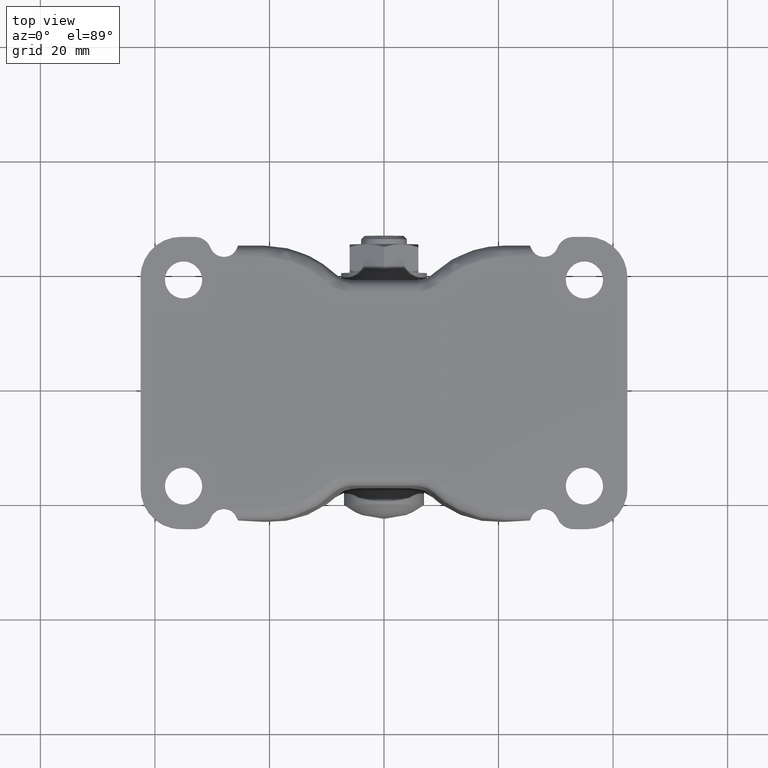
[diagram: clean part render]
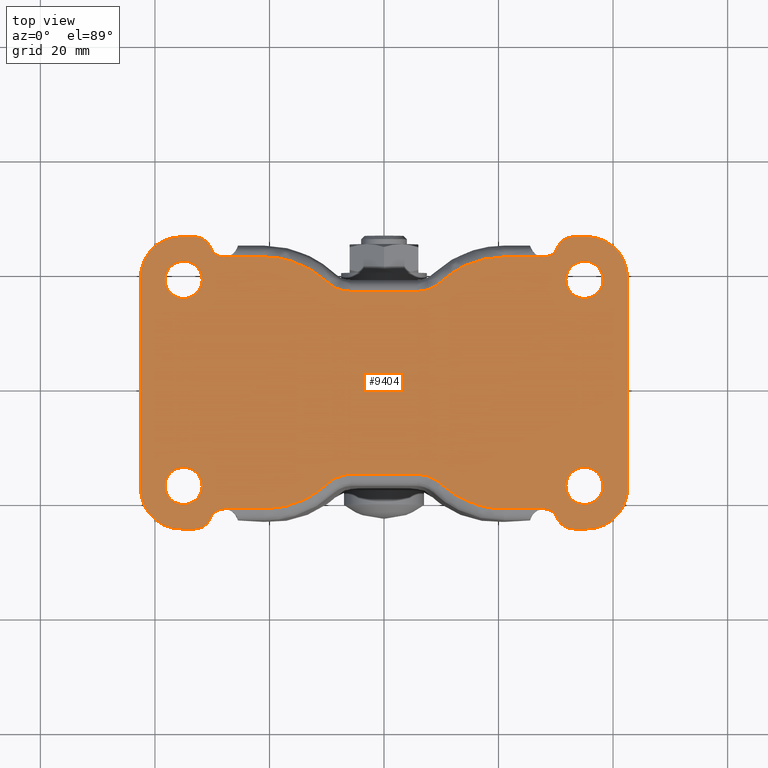
[diagram: same view with one face highlighted and labeled with its STEP entity id]
A machine part, top view. The second image highlights one B-rep face of the part: STEP entity #9404.
In plain terms, the highlighted face is a freeform B-spline surface patch.
Its self-contained STEP definition (entity closure, byte-faithful):
#4621=CARTESIAN_POINT('',(-35.198407753873020,14.756061905152460,48.500000000000000));
#4622=VERTEX_POINT('',#4621);
#4623=CARTESIAN_POINT('',(-31.750000000000000,18.0,48.500000000000000));
#4624=VERTEX_POINT('',#4623);
#4625=CARTESIAN_POINT('',(-35.198407753873028,14.756061905152468,48.500000000000014));
#4626=CARTESIAN_POINT('',(-35.099296480913317,14.750000000000005,48.500000000000007));
#4627=CARTESIAN_POINT('',(-35.0,14.750000000000000,48.500000000000000));
#4628=CARTESIAN_POINT('',(-31.749999999999996,14.749999999999993,48.500000000000014));
#4629=CARTESIAN_POINT('',(-31.750000000000000,18.0,48.500000000000000));
#4637=(BOUNDED_CURVE()B_SPLINE_CURVE(2,(#4625,#4626,#4627,#4628,#4629),.UNSPECIFIED.,.F.,.U.)B_SPLINE_CURVE_WITH_KNOTS((3,2,3),(0.239332962221504,0.250000000000000,0.500000000000000),.UNSPECIFIED.)CURVE()GEOMETRIC_REPRESENTATION_ITEM()RATIONAL_B_SPLINE_CURVE((0.976072041629343,0.987502787879406,1.0,0.707106781186547,1.0))REPRESENTATION_ITEM(''));
#4638=EDGE_CURVE('',#4622,#4624,#4637,.T.);
#4640=CARTESIAN_POINT('',(-34.801592246126987,21.243938094847540,48.499999999999993));
#4641=VERTEX_POINT('',#4640);
#4642=CARTESIAN_POINT('',(-31.750000000000000,18.0,48.500000000000000));
#4643=CARTESIAN_POINT('',(-31.749999999999993,21.057294717080239,48.500000000000021));
#4644=CARTESIAN_POINT('',(-34.801592246126987,21.243938094847532,48.499999999999986));
#4652=(BOUNDED_CURVE()B_SPLINE_CURVE(2,(#4642,#4643,#4644),.UNSPECIFIED.,.F.,.U.)B_SPLINE_CURVE_WITH_KNOTS((3,3),(0.500000000000000,0.739332962221505),.UNSPECIFIED.)CURVE()GEOMETRIC_REPRESENTATION_ITEM()RATIONAL_B_SPLINE_CURVE((1.0,0.719603993307140,0.976072041629344))REPRESENTATION_ITEM(''));
#4653=EDGE_CURVE('',#4624,#4641,#4652,.T.);
#4720=CARTESIAN_POINT('',(-38.250000000000007,18.0,48.500000000000000));
#4721=VERTEX_POINT('',#4720);
#4722=CARTESIAN_POINT('',(-38.250000000000007,18.0,48.500000000000000));
#4723=CARTESIAN_POINT('',(-38.250000000000014,14.942705282919762,48.500000000000014));
#4724=CARTESIAN_POINT('',(-35.198407753873020,14.756061905152464,48.500000000000000));
#4732=(BOUNDED_CURVE()B_SPLINE_CURVE(2,(#4722,#4723,#4724),.UNSPECIFIED.,.F.,.U.)B_SPLINE_CURVE_WITH_KNOTS((3,3),(0.0,0.239332962221504),.UNSPECIFIED.)CURVE()GEOMETRIC_REPRESENTATION_ITEM()RATIONAL_B_SPLINE_CURVE((1.0,0.719603993307141,0.976072041629343))REPRESENTATION_ITEM(''));
#4733=EDGE_CURVE('',#4721,#4622,#4732,.T.);
#4767=CARTESIAN_POINT('',(-34.801592246126987,21.243938094847532,48.499999999999986));
#4768=CARTESIAN_POINT('',(-34.900703519086690,21.249999999999996,48.499999999999993));
#4769=CARTESIAN_POINT('',(-35.0,21.250000000000000,48.500000000000000));
#4770=CARTESIAN_POINT('',(-38.250000000000014,21.249999999999996,48.500000000000014));
#4771=CARTESIAN_POINT('',(-38.250000000000007,18.0,48.500000000000000));
#4779=(BOUNDED_CURVE()B_SPLINE_CURVE(2,(#4767,#4768,#4769,#4770,#4771),.UNSPECIFIED.,.F.,.U.)B_SPLINE_CURVE_WITH_KNOTS((3,2,3),(0.739332962221505,0.750000000000000,1.0),.UNSPECIFIED.)CURVE()GEOMETRIC_REPRESENTATION_ITEM()RATIONAL_B_SPLINE_CURVE((0.976072041629344,0.987502787879407,1.0,0.707106781186547,1.0))REPRESENTATION_ITEM(''));
#4780=EDGE_CURVE('',#4641,#4721,#4779,.T.);
#4803=CARTESIAN_POINT('',(-35.198407753873013,-21.243938094847529,48.500000000000000));
#4804=VERTEX_POINT('',#4803);
#4805=CARTESIAN_POINT('',(-31.750000000000000,-18.0,48.500000000000000));
#4806=VERTEX_POINT('',#4805);
#4807=CARTESIAN_POINT('',(-35.198407753873020,-21.243938094847540,48.499999999999993));
#4808=CARTESIAN_POINT('',(-35.099296480913317,-21.250000000000000,48.500000000000000));
#4809=CARTESIAN_POINT('',(-35.0,-21.250000000000000,48.500000000000000));
#4810=CARTESIAN_POINT('',(-31.749999999999996,-21.249999999999996,48.500000000000014));
#4811=CARTESIAN_POINT('',(-31.750000000000000,-18.0,48.500000000000000));
#4819=(BOUNDED_CURVE()B_SPLINE_CURVE(2,(#4807,#4808,#4809,#4810,#4811),.UNSPECIFIED.,.F.,.U.)B_SPLINE_CURVE_WITH_KNOTS((3,2,3),(0.239332962221504,0.250000000000000,0.500000000000000),.UNSPECIFIED.)CURVE()GEOMETRIC_REPRESENTATION_ITEM()RATIONAL_B_SPLINE_CURVE((0.976072041629344,0.987502787879407,1.0,0.707106781186547,1.0))REPRESENTATION_ITEM(''));
#4820=EDGE_CURVE('',#4804,#4806,#4819,.T.);
#4822=CARTESIAN_POINT('',(-34.801592246126987,-14.756061905152460,48.500000000000000));
#4823=VERTEX_POINT('',#4822);
#4824=CARTESIAN_POINT('',(-31.750000000000000,-18.0,48.500000000000000));
#4825=CARTESIAN_POINT('',(-31.749999999999993,-14.942705282919759,48.500000000000021));
#4826=CARTESIAN_POINT('',(-34.801592246126987,-14.756061905152459,48.499999999999986));
#4834=(BOUNDED_CURVE()B_SPLINE_CURVE(2,(#4824,#4825,#4826),.UNSPECIFIED.,.F.,.U.)B_SPLINE_CURVE_WITH_KNOTS((3,3),(0.500000000000000,0.739332962221505),.UNSPECIFIED.)CURVE()GEOMETRIC_REPRESENTATION_ITEM()RATIONAL_B_SPLINE_CURVE((1.0,0.719603993307140,0.976072041629344))REPRESENTATION_ITEM(''));
#4835=EDGE_CURVE('',#4806,#4823,#4834,.T.);
#4902=CARTESIAN_POINT('',(-38.250000000000007,-18.0,48.500000000000000));
#4903=VERTEX_POINT('',#4902);
#4904=CARTESIAN_POINT('',(-38.250000000000007,-18.0,48.500000000000000));
#4905=CARTESIAN_POINT('',(-38.250000000000000,-21.057294717080236,48.500000000000000));
#4906=CARTESIAN_POINT('',(-35.198407753873013,-21.243938094847536,48.500000000000007));
#4914=(BOUNDED_CURVE()B_SPLINE_CURVE(2,(#4904,#4905,#4906),.UNSPECIFIED.,.F.,.U.)B_SPLINE_CURVE_WITH_KNOTS((3,3),(0.0,0.239332962221505),.UNSPECIFIED.)CURVE()GEOMETRIC_REPRESENTATION_ITEM()RATIONAL_B_SPLINE_CURVE((1.0,0.719603993307140,0.976072041629344))REPRESENTATION_ITEM(''));
#4915=EDGE_CURVE('',#4903,#4804,#4914,.T.);
#4949=CARTESIAN_POINT('',(-34.801592246126987,-14.756061905152459,48.499999999999986));
#4950=CARTESIAN_POINT('',(-34.900703519086690,-14.750000000000005,48.499999999999993));
#4951=CARTESIAN_POINT('',(-35.0,-14.750000000000000,48.500000000000000));
#4952=CARTESIAN_POINT('',(-38.250000000000014,-14.749999999999993,48.500000000000014));
#4953=CARTESIAN_POINT('',(-38.250000000000007,-18.0,48.500000000000000));
#4961=(BOUNDED_CURVE()B_SPLINE_CURVE(2,(#4949,#4950,#4951,#4952,#4953),.UNSPECIFIED.,.F.,.U.)B_SPLINE_CURVE_WITH_KNOTS((3,2,3),(0.739332962221505,0.750000000000000,1.0),.UNSPECIFIED.)CURVE()GEOMETRIC_REPRESENTATION_ITEM()RATIONAL_B_SPLINE_CURVE((0.976072041629344,0.987502787879407,1.0,0.707106781186547,1.0))REPRESENTATION_ITEM(''));
#4962=EDGE_CURVE('',#4823,#4903,#4961,.T.);
#4985=CARTESIAN_POINT('',(34.801592246126980,-21.243938094847529,48.500000000000000));
#4986=VERTEX_POINT('',#4985);
#4987=CARTESIAN_POINT('',(38.250000000000007,-18.0,48.500000000000000));
#4988=VERTEX_POINT('',#4987);
#4989=CARTESIAN_POINT('',(34.801592246126987,-21.243938094847536,48.500000000000007));
#4990=CARTESIAN_POINT('',(34.900703519086683,-21.249999999999996,48.500000000000000));
#4991=CARTESIAN_POINT('',(35.0,-21.250000000000000,48.500000000000000));
#4992=CARTESIAN_POINT('',(38.250000000000014,-21.249999999999996,48.500000000000014));
#4993=CARTESIAN_POINT('',(38.250000000000007,-18.0,48.500000000000000));
#5001=(BOUNDED_CURVE()B_SPLINE_CURVE(2,(#4989,#4990,#4991,#4992,#4993),.UNSPECIFIED.,.F.,.U.)B_SPLINE_CURVE_WITH_KNOTS((3,2,3),(0.239332962221504,0.250000000000000,0.500000000000000),.UNSPECIFIED.)CURVE()GEOMETRIC_REPRESENTATION_ITEM()RATIONAL_B_SPLINE_CURVE((0.976072041629343,0.987502787879406,1.0,0.707106781186547,1.0))REPRESENTATION_ITEM(''));
#5002=EDGE_CURVE('',#4986,#4988,#5001,.T.);
#5004=CARTESIAN_POINT('',(35.198407753873013,-14.756061905152460,48.500000000000000));
#5005=VERTEX_POINT('',#5004);
#5006=CARTESIAN_POINT('',(38.250000000000007,-18.0,48.500000000000000));
#5007=CARTESIAN_POINT('',(38.250000000000007,-14.942705282919759,48.500000000000021));
#5008=CARTESIAN_POINT('',(35.198407753873006,-14.756061905152459,48.499999999999986));
#5016=(BOUNDED_CURVE()B_SPLINE_CURVE(2,(#5006,#5007,#5008),.UNSPECIFIED.,.F.,.U.)B_SPLINE_CURVE_WITH_KNOTS((3,3),(0.500000000000000,0.739332962221505),.UNSPECIFIED.)CURVE()GEOMETRIC_REPRESENTATION_ITEM()RATIONAL_B_SPLINE_CURVE((1.0,0.719603993307140,0.976072041629344))REPRESENTATION_ITEM(''));
#5017=EDGE_CURVE('',#4988,#5005,#5016,.T.);
#5084=CARTESIAN_POINT('',(31.750000000000000,-18.0,48.500000000000000));
#5085=VERTEX_POINT('',#5084);
#5086=CARTESIAN_POINT('',(31.750000000000000,-18.0,48.500000000000000));
#5087=CARTESIAN_POINT('',(31.750000000000004,-21.057294717080236,48.500000000000007));
#5088=CARTESIAN_POINT('',(34.801592246126972,-21.243938094847536,48.500000000000014));
#5096=(BOUNDED_CURVE()B_SPLINE_CURVE(2,(#5086,#5087,#5088),.UNSPECIFIED.,.F.,.U.)B_SPLINE_CURVE_WITH_KNOTS((3,3),(0.0,0.239332962221504),.UNSPECIFIED.)CURVE()GEOMETRIC_REPRESENTATION_ITEM()RATIONAL_B_SPLINE_CURVE((1.0,0.719603993307141,0.976072041629343))REPRESENTATION_ITEM(''));
#5097=EDGE_CURVE('',#5085,#4986,#5096,.T.);
#5131=CARTESIAN_POINT('',(35.198407753873006,-14.756061905152459,48.499999999999986));
#5132=CARTESIAN_POINT('',(35.099296480913310,-14.750000000000005,48.499999999999993));
#5133=CARTESIAN_POINT('',(35.0,-14.750000000000000,48.500000000000000));
#5134=CARTESIAN_POINT('',(31.749999999999996,-14.749999999999993,48.500000000000014));
#5135=CARTESIAN_POINT('',(31.750000000000000,-18.0,48.500000000000000));
#5143=(BOUNDED_CURVE()B_SPLINE_CURVE(2,(#5131,#5132,#5133,#5134,#5135),.UNSPECIFIED.,.F.,.U.)B_SPLINE_CURVE_WITH_KNOTS((3,2,3),(0.739332962221505,0.750000000000000,1.0),.UNSPECIFIED.)CURVE()GEOMETRIC_REPRESENTATION_ITEM()RATIONAL_B_SPLINE_CURVE((0.976072041629344,0.987502787879407,1.0,0.707106781186547,1.0))REPRESENTATION_ITEM(''));
#5144=EDGE_CURVE('',#5005,#5085,#5143,.T.);
#5167=CARTESIAN_POINT('',(34.801592246126972,14.756061905152460,48.500000000000000));
#5168=VERTEX_POINT('',#5167);
#5169=CARTESIAN_POINT('',(38.250000000000007,18.0,48.500000000000000));
#5170=VERTEX_POINT('',#5169);
#5171=CARTESIAN_POINT('',(34.801592246126972,14.756061905152460,48.500000000000007));
#5172=CARTESIAN_POINT('',(34.900703519086676,14.750000000000002,48.500000000000000));
#5173=CARTESIAN_POINT('',(35.0,14.750000000000000,48.500000000000000));
#5174=CARTESIAN_POINT('',(38.250000000000014,14.749999999999993,48.500000000000014));
#5175=CARTESIAN_POINT('',(38.250000000000007,18.0,48.500000000000000));
#5183=(BOUNDED_CURVE()B_SPLINE_CURVE(2,(#5171,#5172,#5173,#5174,#5175),.UNSPECIFIED.,.F.,.U.)B_SPLINE_CURVE_WITH_KNOTS((3,2,3),(0.239332962221504,0.250000000000000,0.500000000000000),.UNSPECIFIED.)CURVE()GEOMETRIC_REPRESENTATION_ITEM()RATIONAL_B_SPLINE_CURVE((0.976072041629342,0.987502787879406,1.0,0.707106781186547,1.0))REPRESENTATION_ITEM(''));
#5184=EDGE_CURVE('',#5168,#5170,#5183,.T.);
#5186=CARTESIAN_POINT('',(35.198407753873013,21.243938094847540,48.500000000000000));
#5187=VERTEX_POINT('',#5186);
#5188=CARTESIAN_POINT('',(38.250000000000007,18.0,48.500000000000000));
#5189=CARTESIAN_POINT('',(38.250000000000007,21.057294717080239,48.500000000000021));
#5190=CARTESIAN_POINT('',(35.198407753873006,21.243938094847532,48.499999999999986));
#5198=(BOUNDED_CURVE()B_SPLINE_CURVE(2,(#5188,#5189,#5190),.UNSPECIFIED.,.F.,.U.)B_SPLINE_CURVE_WITH_KNOTS((3,3),(0.500000000000000,0.739332962221505),.UNSPECIFIED.)CURVE()GEOMETRIC_REPRESENTATION_ITEM()RATIONAL_B_SPLINE_CURVE((1.0,0.719603993307140,0.976072041629344))REPRESENTATION_ITEM(''));
#5199=EDGE_CURVE('',#5170,#5187,#5198,.T.);
#5266=CARTESIAN_POINT('',(31.750000000000000,18.0,48.500000000000000));
#5267=VERTEX_POINT('',#5266);
#5268=CARTESIAN_POINT('',(31.750000000000000,18.0,48.500000000000000));
#5269=CARTESIAN_POINT('',(31.750000000000000,14.942705282919778,48.500000000000000));
#5270=CARTESIAN_POINT('',(34.801592246126987,14.756061905152468,48.500000000000000));
#5278=(BOUNDED_CURVE()B_SPLINE_CURVE(2,(#5268,#5269,#5270),.UNSPECIFIED.,.F.,.U.)B_SPLINE_CURVE_WITH_KNOTS((3,3),(0.0,0.239332962221504),.UNSPECIFIED.)CURVE()GEOMETRIC_REPRESENTATION_ITEM()RATIONAL_B_SPLINE_CURVE((1.0,0.719603993307141,0.976072041629342))REPRESENTATION_ITEM(''));
#5279=EDGE_CURVE('',#5267,#5168,#5278,.T.);
#5313=CARTESIAN_POINT('',(35.198407753873006,21.243938094847532,48.499999999999986));
#5314=CARTESIAN_POINT('',(35.099296480913310,21.249999999999996,48.499999999999993));
#5315=CARTESIAN_POINT('',(35.0,21.250000000000000,48.500000000000000));
#5316=CARTESIAN_POINT('',(31.749999999999996,21.249999999999996,48.500000000000014));
#5317=CARTESIAN_POINT('',(31.750000000000000,18.0,48.500000000000000));
#5325=(BOUNDED_CURVE()B_SPLINE_CURVE(2,(#5313,#5314,#5315,#5316,#5317),.UNSPECIFIED.,.F.,.U.)B_SPLINE_CURVE_WITH_KNOTS((3,2,3),(0.739332962221505,0.750000000000000,1.0),.UNSPECIFIED.)CURVE()GEOMETRIC_REPRESENTATION_ITEM()RATIONAL_B_SPLINE_CURVE((0.976072041629344,0.987502787879407,1.0,0.707106781186547,1.0))REPRESENTATION_ITEM(''));
#5326=EDGE_CURVE('',#5187,#5267,#5325,.T.);
#6190=CARTESIAN_POINT('',(-30.278342450989950,23.590909101619250,48.500000000000000));
#6191=VERTEX_POINT('',#6190);
#6192=CARTESIAN_POINT('',(-27.949490000000001,22.0,48.500000000000000));
#6193=VERTEX_POINT('',#6192);
#6194=CARTESIAN_POINT('',(-30.278342450989950,23.590909101619250,48.500000000000000));
#6195=CARTESIAN_POINT('',(-29.657315136091292,22.0,48.500000000000000));
#6196=CARTESIAN_POINT('',(-27.949490000000001,22.0,48.500000000000000));
#6204=(BOUNDED_CURVE()B_SPLINE_CURVE(2,(#6194,#6195,#6196),.UNSPECIFIED.,.F.,.U.)CURVE()GEOMETRIC_REPRESENTATION_ITEM()QUASI_UNIFORM_CURVE()RATIONAL_B_SPLINE_CURVE((1.0,0.825722822547700,1.0))REPRESENTATION_ITEM(''));
#6205=EDGE_CURVE('',#6191,#6193,#6204,.T.);
#6568=CARTESIAN_POINT('',(-27.949490000000001,-22.0,48.500000000000000));
#6569=VERTEX_POINT('',#6568);
#6615=CARTESIAN_POINT('',(-30.278342450989950,-23.590909101619250,48.500000000000000));
#6616=VERTEX_POINT('',#6615);
#6617=CARTESIAN_POINT('',(-27.949490000000001,-22.0,48.500000000000000));
#6618=CARTESIAN_POINT('',(-29.657315136091281,-22.000000000000004,48.500000000000000));
#6619=CARTESIAN_POINT('',(-30.278342450989840,-23.590909101619300,48.500000000000000));
#6627=(BOUNDED_CURVE()B_SPLINE_CURVE(2,(#6617,#6618,#6619),.UNSPECIFIED.,.F.,.U.)CURVE()GEOMETRIC_REPRESENTATION_ITEM()QUASI_UNIFORM_CURVE()RATIONAL_B_SPLINE_CURVE((1.0,0.825722822547700,1.0))REPRESENTATION_ITEM(''));
#6628=EDGE_CURVE('',#6569,#6616,#6627,.T.);
#6684=CARTESIAN_POINT('',(-33.072966000000001,-25.500000000000000,48.500000000000000));
#6685=VERTEX_POINT('',#6684);
#6686=CARTESIAN_POINT('',(-33.072966000000001,-25.500000000000000,48.500000000000000));
#6687=CARTESIAN_POINT('',(-31.023575690700746,-25.500000000000000,48.500000000000014));
#6688=CARTESIAN_POINT('',(-30.278342986420611,-23.590908892608571,48.500000000000000));
#6696=(BOUNDED_CURVE()B_SPLINE_CURVE(2,(#6686,#6687,#6688),.UNSPECIFIED.,.F.,.U.)CURVE()GEOMETRIC_REPRESENTATION_ITEM()QUASI_UNIFORM_CURVE()RATIONAL_B_SPLINE_CURVE((1.0,0.825722803831949,1.0))REPRESENTATION_ITEM(''));
#6697=EDGE_CURVE('',#6685,#6616,#6696,.T.);
#6728=CARTESIAN_POINT('',(-35.500000000000000,-25.500000000000000,48.500000000000000));
#6729=VERTEX_POINT('',#6728);
#6730=CARTESIAN_POINT('',(-33.072966000000001,-25.500000000000000,48.500000000000000));
#6731=CARTESIAN_POINT('',(-35.500000000000000,-25.500000000000000,48.500000000000000));
#6732=QUASI_UNIFORM_CURVE('',1,(#6730,#6731),.UNSPECIFIED.,.F.,.U.);
#6733=EDGE_CURVE('',#6685,#6729,#6732,.T.);
#6765=CARTESIAN_POINT('',(-42.500000000000000,-18.500000000000000,48.500000000000000));
#6766=VERTEX_POINT('',#6765);
#6767=CARTESIAN_POINT('',(-42.499999999999993,-18.500000000000000,48.500000000000000));
#6768=CARTESIAN_POINT('',(-42.499999999999993,-25.499999999999996,48.500000000000014));
#6769=CARTESIAN_POINT('',(-35.500000000000000,-25.500000000000000,48.500000000000000));
#6777=(BOUNDED_CURVE()B_SPLINE_CURVE(2,(#6767,#6768,#6769),.UNSPECIFIED.,.F.,.U.)CURVE()GEOMETRIC_REPRESENTATION_ITEM()QUASI_UNIFORM_CURVE()RATIONAL_B_SPLINE_CURVE((1.0,0.707106781186547,1.0))REPRESENTATION_ITEM(''));
#6778=EDGE_CURVE('',#6766,#6729,#6777,.T.);
#6809=CARTESIAN_POINT('',(-42.500000000000000,18.500000000000000,48.500000000000000));
#6810=VERTEX_POINT('',#6809);
#6811=CARTESIAN_POINT('',(-42.500000000000000,-18.500000000000000,48.500000000000000));
#6812=CARTESIAN_POINT('',(-42.500000000000000,18.500000000000000,48.500000000000000));
#6813=QUASI_UNIFORM_CURVE('',1,(#6811,#6812),.UNSPECIFIED.,.F.,.U.);
#6814=EDGE_CURVE('',#6766,#6810,#6813,.T.);
#6846=CARTESIAN_POINT('',(-35.500000000000000,25.500000000000000,48.500000000000000));
#6847=VERTEX_POINT('',#6846);
#6848=CARTESIAN_POINT('',(-35.500000000000000,25.500000000000000,48.500000000000000));
#6849=CARTESIAN_POINT('',(-42.499999999999993,25.499999999999996,48.500000000000014));
#6850=CARTESIAN_POINT('',(-42.499999999999993,18.500000000000000,48.500000000000000));
#6858=(BOUNDED_CURVE()B_SPLINE_CURVE(2,(#6848,#6849,#6850),.UNSPECIFIED.,.F.,.U.)CURVE()GEOMETRIC_REPRESENTATION_ITEM()QUASI_UNIFORM_CURVE()RATIONAL_B_SPLINE_CURVE((1.0,0.707106781186547,1.0))REPRESENTATION_ITEM(''));
#6859=EDGE_CURVE('',#6847,#6810,#6858,.T.);
#6890=CARTESIAN_POINT('',(-33.072966000000001,25.500000000000000,48.500000000000000));
#6891=VERTEX_POINT('',#6890);
#6892=CARTESIAN_POINT('',(-35.500000000000000,25.500000000000000,48.500000000000000));
#6893=CARTESIAN_POINT('',(-33.072966000000001,25.500000000000000,48.500000000000000));
#6894=QUASI_UNIFORM_CURVE('',1,(#6892,#6893),.UNSPECIFIED.,.F.,.U.);
#6895=EDGE_CURVE('',#6847,#6891,#6894,.T.);
#6927=CARTESIAN_POINT('',(-30.278342450989950,23.590909101619250,48.500000000000000));
#6928=CARTESIAN_POINT('',(-31.023575690700742,25.499999999999996,48.500000000000007));
#6929=CARTESIAN_POINT('',(-33.072966000000001,25.500000000000000,48.500000000000000));
#6937=(BOUNDED_CURVE()B_SPLINE_CURVE(2,(#6927,#6928,#6929),.UNSPECIFIED.,.F.,.U.)CURVE()GEOMETRIC_REPRESENTATION_ITEM()QUASI_UNIFORM_CURVE()RATIONAL_B_SPLINE_CURVE((1.0,0.825722803831949,1.0))REPRESENTATION_ITEM(''));
#6938=EDGE_CURVE('',#6191,#6891,#6937,.T.);
#8237=CARTESIAN_POINT('',(-20.916408000000100,-22.0,48.500000000000000));
#8238=VERTEX_POINT('',#8237);
#8252=CARTESIAN_POINT('',(-27.949490000000001,-22.0,48.500000000000000));
#8253=CARTESIAN_POINT('',(-20.916408000000100,-22.0,48.500000000000000));
#8254=QUASI_UNIFORM_CURVE('',1,(#8252,#8253),.UNSPECIFIED.,.F.,.U.);
#8255=EDGE_CURVE('',#6569,#8238,#8254,.T.);
#8279=CARTESIAN_POINT('',(-9.934830507501051,-17.636363633865852,48.500000000000000));
#8280=VERTEX_POINT('',#8279);
#8292=CARTESIAN_POINT('',(-20.916408000000100,-22.0,48.500000000000000));
#8293=CARTESIAN_POINT('',(-14.558652629472114,-21.999999999999996,48.500000000000000));
#8294=CARTESIAN_POINT('',(-9.934830568485639,-17.636363569244999,48.500000000000000));
#8302=(BOUNDED_CURVE()B_SPLINE_CURVE(2,(#8292,#8293,#8294),.UNSPECIFIED.,.F.,.U.)CURVE()GEOMETRIC_REPRESENTATION_ITEM()QUASI_UNIFORM_CURVE()RATIONAL_B_SPLINE_CURVE((1.0,0.929320376156095,1.0))REPRESENTATION_ITEM(''));
#8303=EDGE_CURVE('',#8238,#8280,#8302,.T.);
#8329=CARTESIAN_POINT('',(-5.816739000000100,-16.0,48.500000000000000));
#8330=VERTEX_POINT('',#8329);
#8344=CARTESIAN_POINT('',(-9.934830507501056,-17.636363633865841,48.500000000000000));
#8345=CARTESIAN_POINT('',(-8.200897240610246,-15.999999999999998,48.500000000000007));
#8346=CARTESIAN_POINT('',(-5.816739000000100,-16.0,48.500000000000000));
#8354=(BOUNDED_CURVE()B_SPLINE_CURVE(2,(#8344,#8345,#8346),.UNSPECIFIED.,.F.,.U.)CURVE()GEOMETRIC_REPRESENTATION_ITEM()QUASI_UNIFORM_CURVE()RATIONAL_B_SPLINE_CURVE((1.0,0.929320377396575,1.0))REPRESENTATION_ITEM(''));
#8355=EDGE_CURVE('',#8280,#8330,#8354,.T.);
#8390=CARTESIAN_POINT('',(5.816738999999900,-16.0,48.500000000000000));
#8391=VERTEX_POINT('',#8390);
#8405=CARTESIAN_POINT('',(-5.816739000000100,-16.0,48.500000000000000));
#8406=CARTESIAN_POINT('',(5.816738999999900,-16.0,48.500000000000000));
#8407=QUASI_UNIFORM_CURVE('',1,(#8405,#8406),.UNSPECIFIED.,.F.,.U.);
#8408=EDGE_CURVE('',#8330,#8391,#8407,.T.);
#8438=CARTESIAN_POINT('',(9.934829487253692,-17.636363492584149,48.500000000000000));
#8439=VERTEX_POINT('',#8438);
#8451=CARTESIAN_POINT('',(5.816738999999900,-16.0,48.500000000000000));
#8452=CARTESIAN_POINT('',(8.200896754892606,-15.999999999999996,48.500000000000000));
#8453=CARTESIAN_POINT('',(9.934829897343352,-17.636363058042409,48.500000000000000));
#8461=(BOUNDED_CURVE()B_SPLINE_CURVE(2,(#8451,#8452,#8453),.UNSPECIFIED.,.F.,.U.)CURVE()GEOMETRIC_REPRESENTATION_ITEM()QUASI_UNIFORM_CURVE()RATIONAL_B_SPLINE_CURVE((1.0,0.929320403213983,1.0))REPRESENTATION_ITEM(''));
#8462=EDGE_CURVE('',#8391,#8439,#8461,.T.);
#8500=CARTESIAN_POINT('',(20.916407000000000,-22.0,48.500000000000000));
#8501=VERTEX_POINT('',#8500);
#8515=CARTESIAN_POINT('',(9.934829487253703,-17.636363492584142,48.500000000000000));
#8516=CARTESIAN_POINT('',(14.558651564807196,-21.999999999999996,48.499999999999993));
#8517=CARTESIAN_POINT('',(20.916407000000000,-22.0,48.500000000000000));
#8525=(BOUNDED_CURVE()B_SPLINE_CURVE(2,(#8515,#8516,#8517),.UNSPECIFIED.,.F.,.U.)CURVE()GEOMETRIC_REPRESENTATION_ITEM()QUASI_UNIFORM_CURVE()RATIONAL_B_SPLINE_CURVE((1.0,0.929320374867168,1.0))REPRESENTATION_ITEM(''));
#8526=EDGE_CURVE('',#8439,#8501,#8525,.T.);
#8559=CARTESIAN_POINT('',(27.949489000000000,-22.0,48.500000000000000));
#8560=VERTEX_POINT('',#8559);
#8602=CARTESIAN_POINT('',(20.916407000000000,-22.0,48.500000000000000));
#8603=CARTESIAN_POINT('',(27.949489000000000,-22.0,48.500000000000000));
#8604=QUASI_UNIFORM_CURVE('',1,(#8602,#8603),.UNSPECIFIED.,.F.,.U.);
#8605=EDGE_CURVE('',#8501,#8560,#8604,.T.);
#8631=CARTESIAN_POINT('',(-20.916408000000100,22.0,48.500000000000000));
#8632=VERTEX_POINT('',#8631);
#8633=CARTESIAN_POINT('',(-20.916408000000100,22.0,48.500000000000000));
#8634=CARTESIAN_POINT('',(-27.949490000000001,22.0,48.500000000000000));
#8635=QUASI_UNIFORM_CURVE('',1,(#8633,#8634),.UNSPECIFIED.,.F.,.U.);
#8636=EDGE_CURVE('',#8632,#6193,#8635,.T.);
#8672=CARTESIAN_POINT('',(-9.934830624768930,17.636363744535000,48.500000000000000));
#8673=VERTEX_POINT('',#8672);
#8689=CARTESIAN_POINT('',(-9.934830624768930,17.636363744535000,48.500000000000000));
#8690=CARTESIAN_POINT('',(-14.558652722823526,22.0,48.500000000000007));
#8691=CARTESIAN_POINT('',(-20.916408000000100,22.0,48.500000000000000));
#8699=(BOUNDED_CURVE()B_SPLINE_CURVE(2,(#8689,#8690,#8691),.UNSPECIFIED.,.F.,.U.)CURVE()GEOMETRIC_REPRESENTATION_ITEM()QUASI_UNIFORM_CURVE()RATIONAL_B_SPLINE_CURVE((1.0,0.929320378016816,1.0))REPRESENTATION_ITEM(''));
#8700=EDGE_CURVE('',#8673,#8632,#8699,.T.);
#8722=CARTESIAN_POINT('',(-5.816739000000100,16.0,48.500000000000000));
#8723=VERTEX_POINT('',#8722);
#8739=CARTESIAN_POINT('',(-5.816739000000100,16.0,48.500000000000000));
#8740=CARTESIAN_POINT('',(-8.200897333961656,16.000000000000004,48.500000000000007));
#8741=CARTESIAN_POINT('',(-9.934830624768940,17.636363744534989,48.500000000000000));
#8749=(BOUNDED_CURVE()B_SPLINE_CURVE(2,(#8739,#8740,#8741),.UNSPECIFIED.,.F.,.U.)CURVE()GEOMETRIC_REPRESENTATION_ITEM()QUASI_UNIFORM_CURVE()RATIONAL_B_SPLINE_CURVE((1.0,0.929320372434654,1.0))REPRESENTATION_ITEM(''));
#8750=EDGE_CURVE('',#8723,#8673,#8749,.T.);
#8769=CARTESIAN_POINT('',(5.816738999999900,16.0,48.500000000000000));
#8770=VERTEX_POINT('',#8769);
#8786=CARTESIAN_POINT('',(5.816738999999900,16.0,48.500000000000000));
#8787=CARTESIAN_POINT('',(-5.816739000000100,16.0,48.500000000000000));
#8788=QUASI_UNIFORM_CURVE('',1,(#8786,#8787),.UNSPECIFIED.,.F.,.U.);
#8789=EDGE_CURVE('',#8770,#8723,#8788,.T.);
#8811=CARTESIAN_POINT('',(9.934830082752630,17.636364054573900,48.500000000000000));
#8812=VERTEX_POINT('',#8811);
#8842=CARTESIAN_POINT('',(9.934830082752630,17.636364054573900,48.500000000000000));
#8843=CARTESIAN_POINT('',(8.200897228941116,16.0,48.500000000000000));
#8844=CARTESIAN_POINT('',(5.816738999999900,16.0,48.500000000000000));
#8852=(BOUNDED_CURVE()B_SPLINE_CURVE(2,(#8842,#8843,#8844),.UNSPECIFIED.,.F.,.U.)CURVE()GEOMETRIC_REPRESENTATION_ITEM()QUASI_UNIFORM_CURVE()RATIONAL_B_SPLINE_CURVE((1.0,0.929320378016816,1.0))REPRESENTATION_ITEM(''));
#8853=EDGE_CURVE('',#8812,#8770,#8852,.T.);
#8875=CARTESIAN_POINT('',(20.916407000000000,22.0,48.500000000000000));
#8876=VERTEX_POINT('',#8875);
#8906=CARTESIAN_POINT('',(20.916407000000000,22.0,48.500000000000000));
#8907=CARTESIAN_POINT('',(14.558652038855673,22.000000000000004,48.500000000000007));
#8908=CARTESIAN_POINT('',(9.934830082752624,17.636364054573900,48.500000000000000));
#8916=(BOUNDED_CURVE()B_SPLINE_CURVE(2,(#8906,#8907,#8908),.UNSPECIFIED.,.F.,.U.)CURVE()GEOMETRIC_REPRESENTATION_ITEM()QUASI_UNIFORM_CURVE()RATIONAL_B_SPLINE_CURVE((1.0,0.929320384316106,1.0))REPRESENTATION_ITEM(''));
#8917=EDGE_CURVE('',#8876,#8812,#8916,.T.);
#8938=CARTESIAN_POINT('',(27.949489000000000,22.0,48.500000000000000));
#8939=VERTEX_POINT('',#8938);
#8991=CARTESIAN_POINT('',(27.949489000000000,22.0,48.500000000000000));
#8992=CARTESIAN_POINT('',(20.916407000000000,22.0,48.500000000000000));
#8993=QUASI_UNIFORM_CURVE('',1,(#8991,#8992),.UNSPECIFIED.,.F.,.U.);
#8994=EDGE_CURVE('',#8939,#8876,#8993,.T.);
#9241=CARTESIAN_POINT('',(-46.745749835253513,28.047449901152110,48.500000000000000));
#9242=CARTESIAN_POINT('',(46.745752115131168,28.047449901152110,48.500000000000000));
#9243=CARTESIAN_POINT('',(-46.745749835253513,-28.047451269078710,48.500000000000000));
#9244=CARTESIAN_POINT('',(46.745752115131168,-28.047451269078710,48.500000000000000));
#9245=B_SPLINE_SURFACE_WITH_KNOTS('',1,1,((#9241,#9243),(#9242,#9244)),.UNSPECIFIED.,.F.,.F.,.U.,(2,2),(2,2),(0.0,93.491501950384674),(0.0,56.094901170230813),.UNSPECIFIED.);
#9246=ORIENTED_EDGE('',*,*,#6628,.F.);
#9247=ORIENTED_EDGE('',*,*,#8255,.T.);
#9248=ORIENTED_EDGE('',*,*,#8303,.T.);
#9249=ORIENTED_EDGE('',*,*,#8355,.T.);
#9250=ORIENTED_EDGE('',*,*,#8408,.T.);
#9251=ORIENTED_EDGE('',*,*,#8462,.T.);
#9252=ORIENTED_EDGE('',*,*,#8526,.T.);
#9253=ORIENTED_EDGE('',*,*,#8605,.T.);
#9254=CARTESIAN_POINT('',(30.278342058812200,-23.590909078056900,48.500000000000000));
#9255=VERTEX_POINT('',#9254);
#9256=CARTESIAN_POINT('',(30.278342058812200,-23.590909078056900,48.500000000000000));
#9257=CARTESIAN_POINT('',(29.657314282081032,-21.999999999999993,48.500000000000007));
#9258=CARTESIAN_POINT('',(27.949489000000000,-22.0,48.500000000000000));
#9266=(BOUNDED_CURVE()B_SPLINE_CURVE(2,(#9256,#9257,#9258),.UNSPECIFIED.,.F.,.U.)CURVE()GEOMETRIC_REPRESENTATION_ITEM()QUASI_UNIFORM_CURVE()RATIONAL_B_SPLINE_CURVE((1.0,0.825722800088793,1.0))REPRESENTATION_ITEM(''));
#9267=EDGE_CURVE('',#9255,#8560,#9266,.T.);
#9268=ORIENTED_EDGE('',*,*,#9267,.F.);
#9269=CARTESIAN_POINT('',(33.072965000000003,-25.500000000000000,48.500000000000000));
#9270=VERTEX_POINT('',#9269);
#9271=CARTESIAN_POINT('',(30.278342058812221,-23.590909078056900,48.500000000000000));
#9272=CARTESIAN_POINT('',(31.023574836690504,-25.500000000000004,48.499999999999993));
#9273=CARTESIAN_POINT('',(33.072965000000003,-25.500000000000000,48.500000000000000));
#9281=(BOUNDED_CURVE()B_SPLINE_CURVE(2,(#9271,#9272,#9273),.UNSPECIFIED.,.F.,.U.)CURVE()GEOMETRIC_REPRESENTATION_ITEM()QUASI_UNIFORM_CURVE()RATIONAL_B_SPLINE_CURVE((1.0,0.825722822547705,1.0))REPRESENTATION_ITEM(''));
#9282=EDGE_CURVE('',#9255,#9270,#9281,.T.);
#9283=ORIENTED_EDGE('',*,*,#9282,.T.);
#9284=CARTESIAN_POINT('',(35.500000000000000,-25.500000000000000,48.500000000000000));
#9285=VERTEX_POINT('',#9284);
#9286=CARTESIAN_POINT('',(35.500000000000000,-25.500000000000000,48.500000000000000));
#9287=CARTESIAN_POINT('',(33.072965000000003,-25.500000000000000,48.500000000000000));
#9288=QUASI_UNIFORM_CURVE('',1,(#9286,#9287),.UNSPECIFIED.,.F.,.U.);
#9289=EDGE_CURVE('',#9285,#9270,#9288,.T.);
#9290=ORIENTED_EDGE('',*,*,#9289,.F.);
#9291=CARTESIAN_POINT('',(42.500000000000000,-18.500000000000000,48.500000000000000));
#9292=VERTEX_POINT('',#9291);
#9293=CARTESIAN_POINT('',(35.500000000000000,-25.500000000000000,48.500000000000000));
#9294=CARTESIAN_POINT('',(42.499999999999993,-25.499999999999996,48.500000000000014));
#9295=CARTESIAN_POINT('',(42.499999999999993,-18.500000000000000,48.500000000000000));
#9303=(BOUNDED_CURVE()B_SPLINE_CURVE(2,(#9293,#9294,#9295),.UNSPECIFIED.,.F.,.U.)CURVE()GEOMETRIC_REPRESENTATION_ITEM()QUASI_UNIFORM_CURVE()RATIONAL_B_SPLINE_CURVE((1.0,0.707106781186547,1.0))REPRESENTATION_ITEM(''));
#9304=EDGE_CURVE('',#9285,#9292,#9303,.T.);
#9305=ORIENTED_EDGE('',*,*,#9304,.T.);
#9306=CARTESIAN_POINT('',(42.500000000000000,18.500000000000000,48.500000000000000));
#9307=VERTEX_POINT('',#9306);
#9308=CARTESIAN_POINT('',(42.500000000000000,18.500000000000000,48.500000000000000));
#9309=CARTESIAN_POINT('',(42.500000000000000,-18.500000000000000,48.500000000000000));
#9310=QUASI_UNIFORM_CURVE('',1,(#9308,#9309),.UNSPECIFIED.,.F.,.U.);
#9311=EDGE_CURVE('',#9307,#9292,#9310,.T.);
#9312=ORIENTED_EDGE('',*,*,#9311,.F.);
#9313=CARTESIAN_POINT('',(35.500000000000000,25.500000000000000,48.500000000000000));
#9314=VERTEX_POINT('',#9313);
#9315=CARTESIAN_POINT('',(42.499999999999993,18.500000000000000,48.500000000000000));
#9316=CARTESIAN_POINT('',(42.499999999999993,25.499999999999996,48.500000000000014));
#9317=CARTESIAN_POINT('',(35.500000000000000,25.500000000000000,48.500000000000000));
#9325=(BOUNDED_CURVE()B_SPLINE_CURVE(2,(#9315,#9316,#9317),.UNSPECIFIED.,.F.,.U.)CURVE()GEOMETRIC_REPRESENTATION_ITEM()QUASI_UNIFORM_CURVE()RATIONAL_B_SPLINE_CURVE((1.0,0.707106781186547,1.0))REPRESENTATION_ITEM(''));
#9326=EDGE_CURVE('',#9307,#9314,#9325,.T.);
#9327=ORIENTED_EDGE('',*,*,#9326,.T.);
#9328=CARTESIAN_POINT('',(33.072965000000003,25.500000000000000,48.500000000000000));
#9329=VERTEX_POINT('',#9328);
#9330=CARTESIAN_POINT('',(33.072965000000003,25.500000000000000,48.500000000000000));
#9331=CARTESIAN_POINT('',(35.500000000000000,25.500000000000000,48.500000000000000));
#9332=QUASI_UNIFORM_CURVE('',1,(#9330,#9331),.UNSPECIFIED.,.F.,.U.);
#9333=EDGE_CURVE('',#9329,#9314,#9332,.T.);
#9334=ORIENTED_EDGE('',*,*,#9333,.F.);
#9335=CARTESIAN_POINT('',(30.278341450989799,23.590909101619250,48.500000000000000));
#9336=VERTEX_POINT('',#9335);
#9337=CARTESIAN_POINT('',(33.072965000000003,25.500000000000000,48.500000000000000));
#9338=CARTESIAN_POINT('',(31.023574690700702,25.500000000000004,48.500000000000000));
#9339=CARTESIAN_POINT('',(30.278341986420589,23.590908892608510,48.500000000000000));
#9347=(BOUNDED_CURVE()B_SPLINE_CURVE(2,(#9337,#9338,#9339),.UNSPECIFIED.,.F.,.U.)CURVE()GEOMETRIC_REPRESENTATION_ITEM()QUASI_UNIFORM_CURVE()RATIONAL_B_SPLINE_CURVE((1.0,0.825722803831943,1.0))REPRESENTATION_ITEM(''));
#9348=EDGE_CURVE('',#9329,#9336,#9347,.T.);
#9349=ORIENTED_EDGE('',*,*,#9348,.T.);
#9350=CARTESIAN_POINT('',(27.949489000000000,22.0,48.500000000000000));
#9351=CARTESIAN_POINT('',(29.657314136091244,22.000000000000007,48.500000000000007));
#9352=CARTESIAN_POINT('',(30.278341450989810,23.590909101619239,48.500000000000000));
#9360=(BOUNDED_CURVE()B_SPLINE_CURVE(2,(#9350,#9351,#9352),.UNSPECIFIED.,.F.,.U.)CURVE()GEOMETRIC_REPRESENTATION_ITEM()QUASI_UNIFORM_CURVE()RATIONAL_B_SPLINE_CURVE((1.0,0.825722822547707,1.0))REPRESENTATION_ITEM(''));
#9361=EDGE_CURVE('',#8939,#9336,#9360,.T.);
#9362=ORIENTED_EDGE('',*,*,#9361,.F.);
#9363=ORIENTED_EDGE('',*,*,#8994,.T.);
#9364=ORIENTED_EDGE('',*,*,#8917,.T.);
#9365=ORIENTED_EDGE('',*,*,#8853,.T.);
#9366=ORIENTED_EDGE('',*,*,#8789,.T.);
#9367=ORIENTED_EDGE('',*,*,#8750,.T.);
#9368=ORIENTED_EDGE('',*,*,#8700,.T.);
#9369=ORIENTED_EDGE('',*,*,#8636,.T.);
#9370=ORIENTED_EDGE('',*,*,#6205,.F.);
#9371=ORIENTED_EDGE('',*,*,#6938,.T.);
#9372=ORIENTED_EDGE('',*,*,#6895,.F.);
#9373=ORIENTED_EDGE('',*,*,#6859,.T.);
#9374=ORIENTED_EDGE('',*,*,#6814,.F.);
#9375=ORIENTED_EDGE('',*,*,#6778,.T.);
#9376=ORIENTED_EDGE('',*,*,#6733,.F.);
#9377=ORIENTED_EDGE('',*,*,#6697,.T.);
#9378=EDGE_LOOP('',(#9246,#9247,#9248,#9249,#9250,#9251,#9252,#9253,#9268,#9283,#9290,#9305,#9312,#9327,#9334,#9349,#9362,#9363,#9364,#9365,#9366,#9367,#9368,#9369,#9370,#9371,#9372,#9373,#9374,#9375,#9376,#9377));
#9379=FACE_OUTER_BOUND('',#9378,.T.);
#9380=ORIENTED_EDGE('',*,*,#5199,.F.);
#9381=ORIENTED_EDGE('',*,*,#5184,.F.);
#9382=ORIENTED_EDGE('',*,*,#5279,.F.);
#9383=ORIENTED_EDGE('',*,*,#5326,.F.);
#9384=EDGE_LOOP('',(#9380,#9381,#9382,#9383));
#9385=FACE_BOUND('',#9384,.T.);
#9386=ORIENTED_EDGE('',*,*,#5017,.F.);
#9387=ORIENTED_EDGE('',*,*,#5002,.F.);
#9388=ORIENTED_EDGE('',*,*,#5097,.F.);
#9389=ORIENTED_EDGE('',*,*,#5144,.F.);
#9390=EDGE_LOOP('',(#9386,#9387,#9388,#9389));
#9391=FACE_BOUND('',#9390,.T.);
#9392=ORIENTED_EDGE('',*,*,#4835,.F.);
#9393=ORIENTED_EDGE('',*,*,#4820,.F.);
#9394=ORIENTED_EDGE('',*,*,#4915,.F.);
#9395=ORIENTED_EDGE('',*,*,#4962,.F.);
#9396=EDGE_LOOP('',(#9392,#9393,#9394,#9395));
#9397=FACE_BOUND('',#9396,.T.);
#9398=ORIENTED_EDGE('',*,*,#4653,.F.);
#9399=ORIENTED_EDGE('',*,*,#4638,.F.);
#9400=ORIENTED_EDGE('',*,*,#4733,.F.);
#9401=ORIENTED_EDGE('',*,*,#4780,.F.);
#9402=EDGE_LOOP('',(#9398,#9399,#9400,#9401));
#9403=FACE_BOUND('',#9402,.T.);
#9404=ADVANCED_FACE('',(#9379,#9385,#9391,#9397,#9403),#9245,.F.);